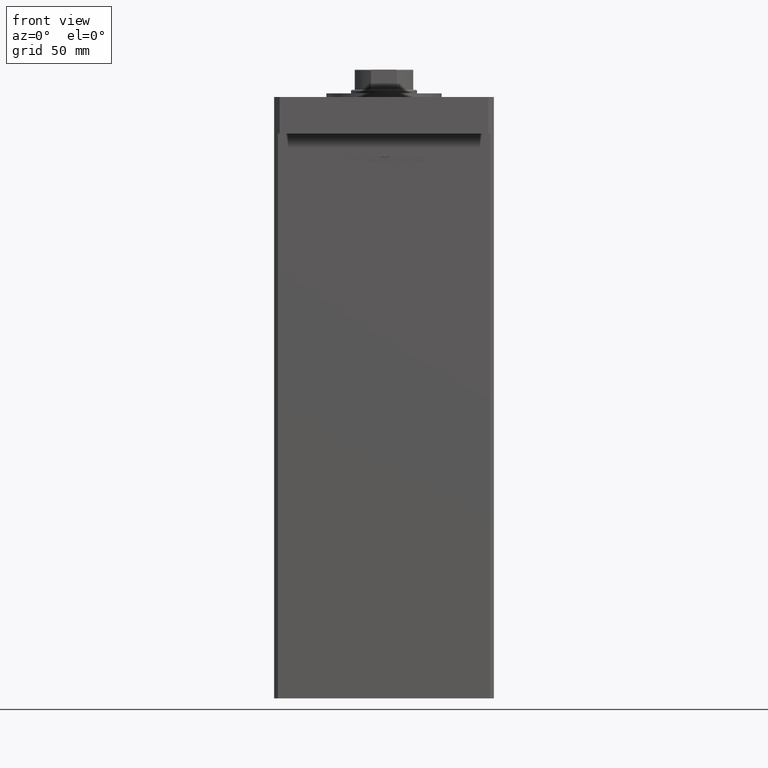
[diagram: clean part render]
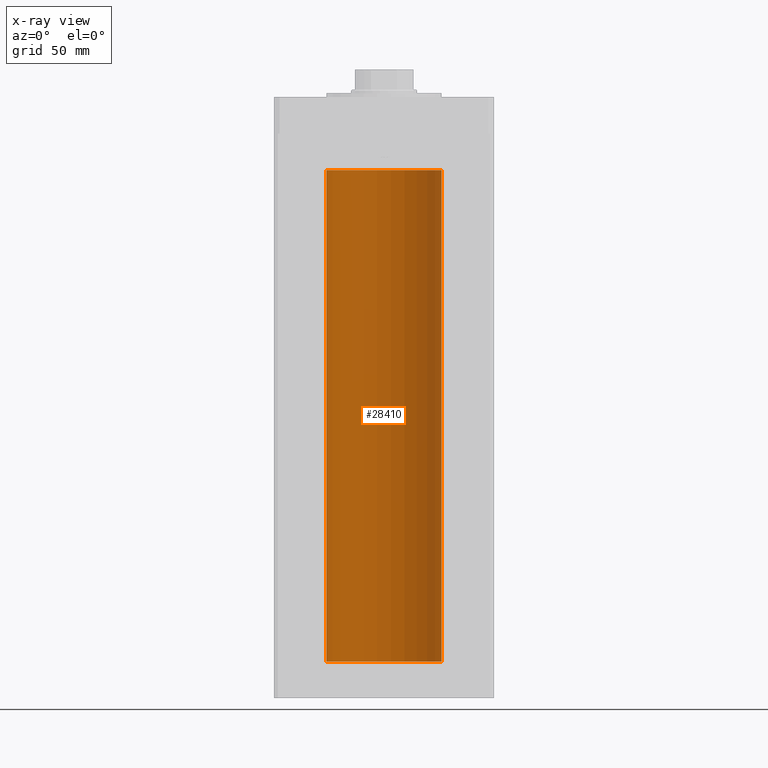
[diagram: x-ray — body ghosted, one internal face saturated and labeled with its STEP entity id]
A machine part, front view, then the same camera in x-ray: the body is ghosted and one INTERNAL B-rep face — a face not visible from any outside direction — is saturated and labeled: STEP entity #28410.
In plain terms, the highlighted cylindrical surface (partial cylindrical patch) has radius 31.5 mm, axis along (-0, -0, -1).
Its self-contained STEP definition (entity closure, byte-faithful):
#1187 = VERTEX_POINT ( 'NONE', #45473 ) ;
#1207 = VERTEX_POINT ( 'NONE', #46048 ) ;
#1815 = CARTESIAN_POINT ( 'NONE',  ( 0.000000000000000000, 0.000000000000000000, 268.5000000000000000 ) ) ;
#5981 = LINE ( 'NONE', #45304, #14719 ) ;
#6405 = DIRECTION ( 'NONE',  ( -0.000000000000000000, 0.000000000000000000, 1.000000000000000000 ) ) ;
#6612 = VECTOR ( 'NONE', #44112, 1000.000000000000000 ) ;
#7732 = ORIENTED_EDGE ( 'NONE', *, *, #42336, .T. ) ;
#8345 = CARTESIAN_POINT ( 'NONE',  ( 31.50000000000000000, 3.857637417314162689E-15, 268.5000000000000000 ) ) ;
#10624 = CYLINDRICAL_SURFACE ( 'NONE', #34317, 31.50000000000000000 ) ;
#12466 = VERTEX_POINT ( 'NONE', #53434 ) ;
#14719 = VECTOR ( 'NONE', #55277, 1000.000000000000000 ) ;
#14944 = DIRECTION ( 'NONE',  ( 1.000000000000000000, 0.000000000000000000, 0.000000000000000000 ) ) ;
#15426 = DIRECTION ( 'NONE',  ( 1.000000000000000000, 0.000000000000000000, 0.000000000000000000 ) ) ;
#20687 = CIRCLE ( 'NONE', #23505, 31.50000000000000000 ) ;
#21357 = CARTESIAN_POINT ( 'NONE',  ( -31.50000000000000000, 0.000000000000000000, 0.000000000000000000 ) ) ;
#23505 = AXIS2_PLACEMENT_3D ( 'NONE', #37413, #29785, #15426 ) ;
#24761 = VERTEX_POINT ( 'NONE', #21357 ) ;
#25255 = EDGE_CURVE ( 'NONE', #1187, #24761, #49170, .T. ) ;
#27695 = ORIENTED_EDGE ( 'NONE', *, *, #46157, .F. ) ;
#28410 = ADVANCED_FACE ( 'NONE', ( #41696 ), #10624, .F. ) ;
#28512 = DIRECTION ( 'NONE',  ( -0.000000000000000000, -0.000000000000000000, -1.000000000000000000 ) ) ;
#29785 = DIRECTION ( 'NONE',  ( -0.000000000000000000, 0.000000000000000000, 1.000000000000000000 ) ) ;
#31387 = ORIENTED_EDGE ( 'NONE', *, *, #25255, .F. ) ;
#32237 = EDGE_LOOP ( 'NONE', ( #27695, #7732, #44704, #31387 ) ) ;
#33269 = AXIS2_PLACEMENT_3D ( 'NONE', #55681, #6405, #14944 ) ;
#34262 = EDGE_CURVE ( 'NONE', #12466, #24761, #5981, .T. ) ;
#34317 = AXIS2_PLACEMENT_3D ( 'NONE', #1815, #28512, #37605 ) ;
#34754 = LINE ( 'NONE', #8345, #6612 ) ;
#37413 = CARTESIAN_POINT ( 'NONE',  ( 0.000000000000000000, 0.000000000000000000, 268.5000000000000000 ) ) ;
#37605 = DIRECTION ( 'NONE',  ( -1.000000000000000000, 0.000000000000000000, 0.000000000000000000 ) ) ;
#41696 = FACE_OUTER_BOUND ( 'NONE', #32237, .T. ) ;
#42336 = EDGE_CURVE ( 'NONE', #1207, #12466, #20687, .T. ) ;
#44112 = DIRECTION ( 'NONE',  ( -0.000000000000000000, -0.000000000000000000, -1.000000000000000000 ) ) ;
#44704 = ORIENTED_EDGE ( 'NONE', *, *, #34262, .T. ) ;
#45304 = CARTESIAN_POINT ( 'NONE',  ( -31.50000000000000000, 0.000000000000000000, 268.5000000000000000 ) ) ;
#45473 = CARTESIAN_POINT ( 'NONE',  ( 31.50000000000000000, 3.857637417314162689E-15, 0.000000000000000000 ) ) ;
#46048 = CARTESIAN_POINT ( 'NONE',  ( 31.50000000000000000, 3.857637417314162689E-15, 268.5000000000000000 ) ) ;
#46157 = EDGE_CURVE ( 'NONE', #1207, #1187, #34754, .T. ) ;
#49170 = CIRCLE ( 'NONE', #33269, 31.50000000000000000 ) ;
#53434 = CARTESIAN_POINT ( 'NONE',  ( -31.50000000000000000, 0.000000000000000000, 268.5000000000000000 ) ) ;
#55277 = DIRECTION ( 'NONE',  ( -0.000000000000000000, -0.000000000000000000, -1.000000000000000000 ) ) ;
#55681 = CARTESIAN_POINT ( 'NONE',  ( 0.000000000000000000, 0.000000000000000000, 0.000000000000000000 ) ) ;